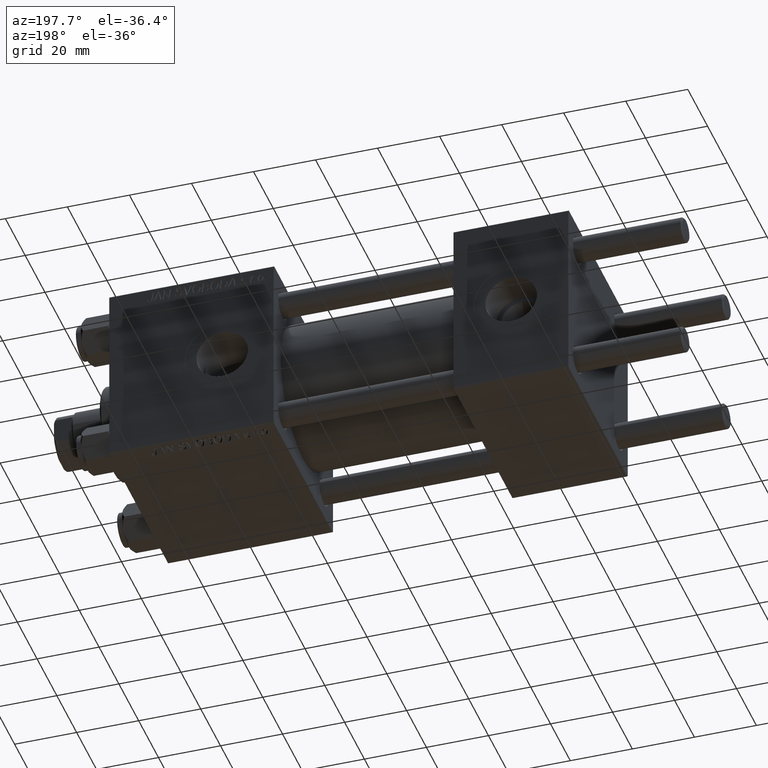
[diagram: clean part render]
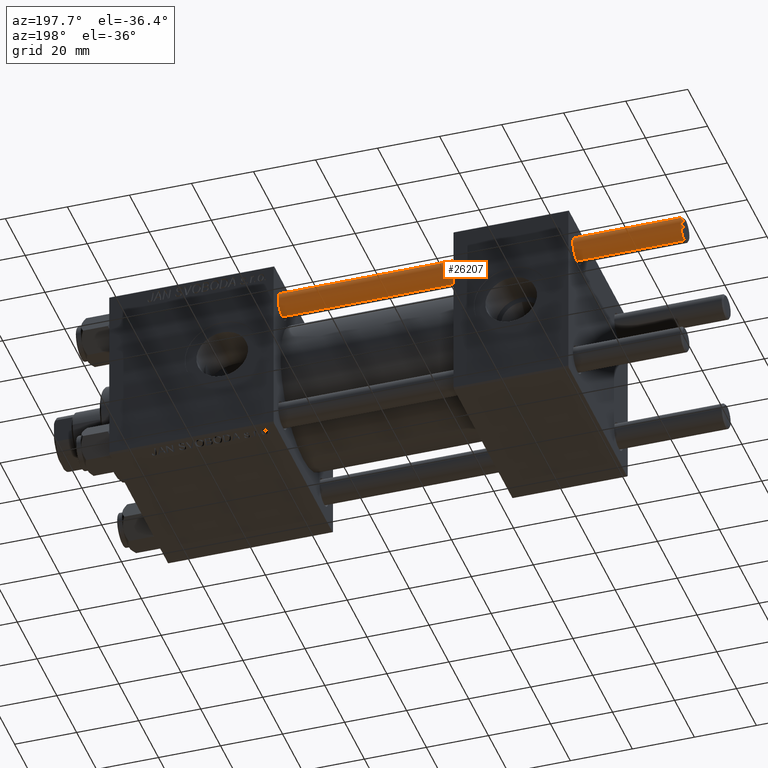
[diagram: same view with one face highlighted and labeled with its STEP entity id]
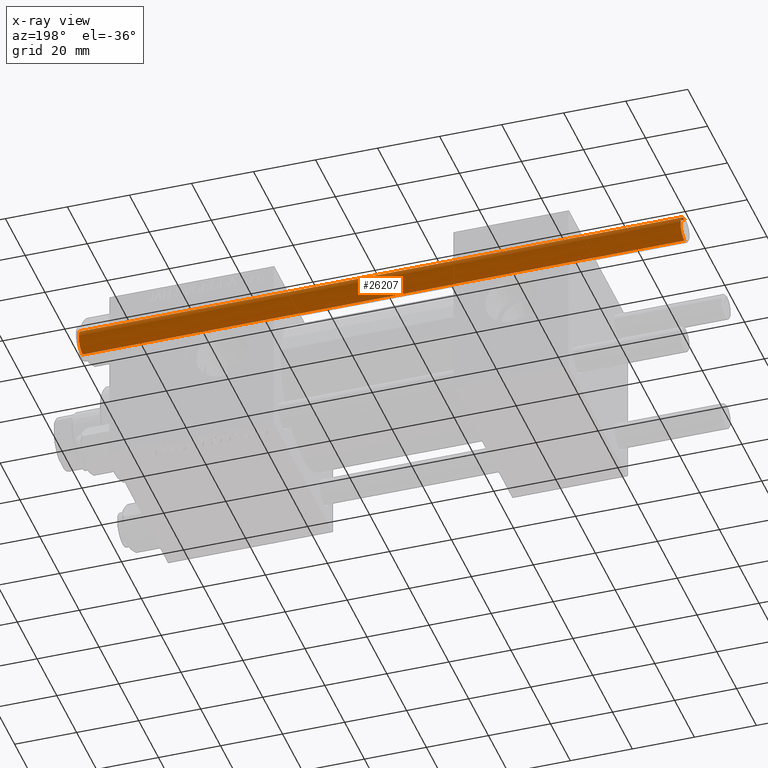
[diagram: x-ray of the same camera — body ghosted, the highlighted face saturated]
A machine part, auxiliary view. The second image highlights one B-rep face of the part: STEP entity #26207.
The next image is the same camera in x-ray: the body ghosted, the highlighted face saturated — about 0% of this face is hidden behind the body in this view.
In plain terms, the highlighted cylindrical surface (edge-blend (fillet) strip) has radius 4 mm, axis along (-1, -0, -0).
Its self-contained STEP definition (entity closure, byte-faithful):
#792 = AXIS2_PLACEMENT_3D ( 'NONE', #25212, #28506, #43915 ) ;
#1437 = CARTESIAN_POINT ( 'NONE',  ( 0.000000000000000000, 0.000000000000000000, 0.5000000000000004441 ) ) ;
#1832 = VERTEX_POINT ( 'NONE', #19672 ) ;
#1926 = DIRECTION ( 'NONE',  ( 1.000000000000000000, 0.000000000000000000, 0.000000000000000000 ) ) ;
#6326 = EDGE_CURVE ( 'NONE', #20450, #48966, #8673, .T. ) ;
#6351 = DIRECTION ( 'NONE',  ( -0.000000000000000000, -0.000000000000000000, -1.000000000000000000 ) ) ;
#8673 = CIRCLE ( 'NONE', #18391, 4.000000000000000000 ) ;
#9135 = EDGE_CURVE ( 'NONE', #1832, #12785, #22511, .T. ) ;
#10146 = CARTESIAN_POINT ( 'NONE',  ( -4.000000000000000000, 0.000000000000000000, 195.0000000000000000 ) ) ;
#10244 = ORIENTED_EDGE ( 'NONE', *, *, #29904, .T. ) ;
#12785 = VERTEX_POINT ( 'NONE', #35241 ) ;
#13065 = CYLINDRICAL_SURFACE ( 'NONE', #792, 4.000000000000000000 ) ;
#14337 = DIRECTION ( 'NONE',  ( -0.000000000000000000, -0.000000000000000000, -1.000000000000000000 ) ) ;
#14361 = EDGE_CURVE ( 'NONE', #1832, #48966, #17772, .T. ) ;
#16898 = DIRECTION ( 'NONE',  ( -0.000000000000000000, -0.000000000000000000, 1.000000000000000000 ) ) ;
#17772 = LINE ( 'NONE', #10146, #39638 ) ;
#17775 = VECTOR ( 'NONE', #14337, 1000.000000000000000 ) ;
#18044 = DIRECTION ( 'NONE',  ( 1.000000000000000000, 0.000000000000000000, 0.000000000000000000 ) ) ;
#18391 = AXIS2_PLACEMENT_3D ( 'NONE', #1437, #16898, #1926 ) ;
#19672 = CARTESIAN_POINT ( 'NONE',  ( -4.000000000000000000, 0.000000000000000000, 194.5000000000000568 ) ) ;
#20450 = VERTEX_POINT ( 'NONE', #39196 ) ;
#22003 = ORIENTED_EDGE ( 'NONE', *, *, #9135, .T. ) ;
#22511 = CIRCLE ( 'NONE', #35419, 4.000000000000000000 ) ;
#25212 = CARTESIAN_POINT ( 'NONE',  ( 0.000000000000000000, 0.000000000000000000, 195.0000000000000000 ) ) ;
#26207 = ADVANCED_FACE ( 'NONE', ( #47715 ), #13065, .T. ) ;
#28506 = DIRECTION ( 'NONE',  ( -0.000000000000000000, -0.000000000000000000, -1.000000000000000000 ) ) ;
#29675 = CARTESIAN_POINT ( 'NONE',  ( 0.000000000000000000, 0.000000000000000000, 194.5000000000000568 ) ) ;
#29904 = EDGE_CURVE ( 'NONE', #12785, #20450, #48990, .T. ) ;
#33571 = CARTESIAN_POINT ( 'NONE',  ( 4.000000000000000000, 4.898587196589412829E-16, 195.0000000000000000 ) ) ;
#33717 = DIRECTION ( 'NONE',  ( 0.000000000000000000, 0.000000000000000000, -1.000000000000000000 ) ) ;
#35241 = CARTESIAN_POINT ( 'NONE',  ( 4.000000000000000000, 4.898587196589412829E-16, 194.5000000000000568 ) ) ;
#35419 = AXIS2_PLACEMENT_3D ( 'NONE', #29675, #33717, #18044 ) ;
#39196 = CARTESIAN_POINT ( 'NONE',  ( 4.000000000000000000, 4.898587196589412829E-16, 0.5000000000000004441 ) ) ;
#39638 = VECTOR ( 'NONE', #6351, 1000.000000000000000 ) ;
#39639 = EDGE_LOOP ( 'NONE', ( #22003, #10244, #43683, #42596 ) ) ;
#40054 = CARTESIAN_POINT ( 'NONE',  ( -4.000000000000000000, 0.000000000000000000, 0.5000000000000004441 ) ) ;
#42596 = ORIENTED_EDGE ( 'NONE', *, *, #14361, .F. ) ;
#43683 = ORIENTED_EDGE ( 'NONE', *, *, #6326, .T. ) ;
#43915 = DIRECTION ( 'NONE',  ( -1.000000000000000000, 0.000000000000000000, 0.000000000000000000 ) ) ;
#47715 = FACE_OUTER_BOUND ( 'NONE', #39639, .T. ) ;
#48966 = VERTEX_POINT ( 'NONE', #40054 ) ;
#48990 = LINE ( 'NONE', #33571, #17775 ) ;